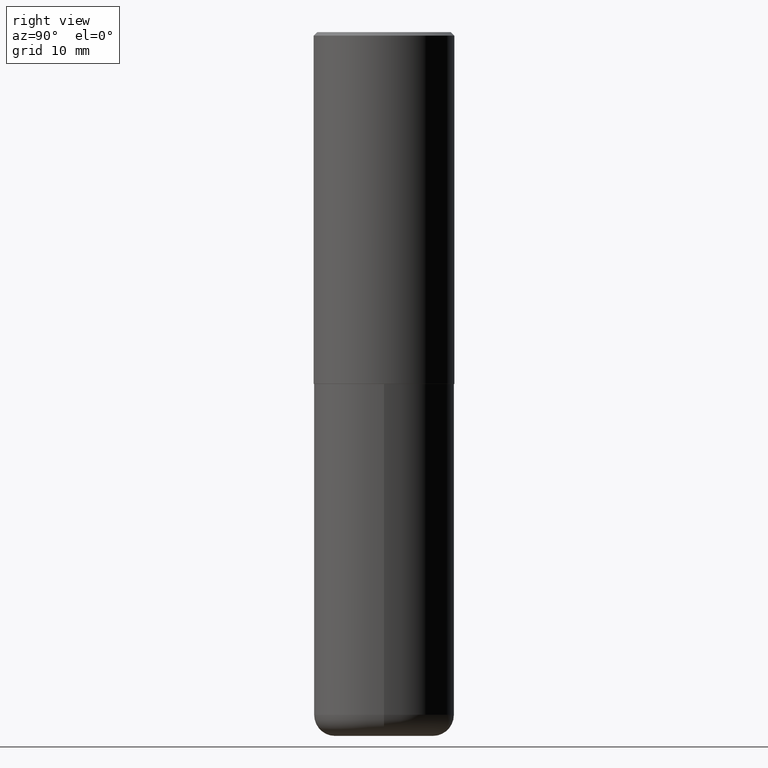
[diagram: clean part render]
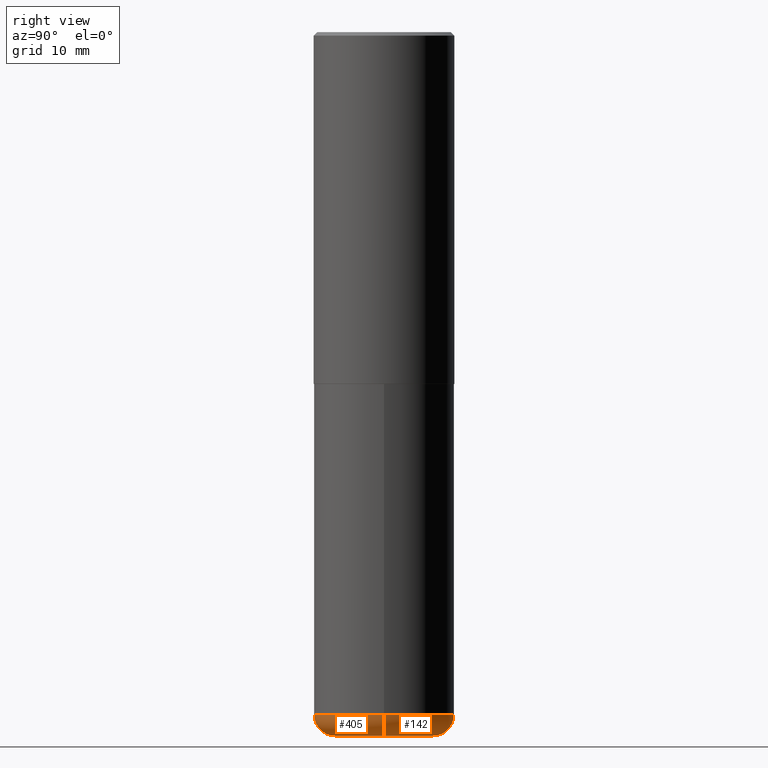
[diagram: same view with one multi-face feature highlighted, each face labeled with its STEP entity id]
A machine part, right view. The highlighted faces form ONE feature: a constant-radius fillet chain: 2 tangent blend faces with common blend radius 2.9997 mm. The faces share edges in the B-rep.
Their STEP definitions:
[1] entity #142 (Torus):
#6 = CARTESIAN_POINT ( 'NONE',  ( 0.2756000000000000116, -1.567046654499579837E-14, -3.937000000000000277 ) ) ;
#9 = ORIENTED_EDGE ( 'NONE', *, *, #338, .T. ) ;
#30 = CARTESIAN_POINT ( 'NONE',  ( 0.3937000000000000499, -1.608281049111317408E-14, -3.818900000000000183 ) ) ;
#40 = FACE_OUTER_BOUND ( 'NONE', #399, .T. ) ;
#41 = ORIENTED_EDGE ( 'NONE', *, *, #353, .T. ) ;
#45 = CIRCLE ( 'NONE', #272, 0.2756000000000000116 ) ;
#54 = AXIS2_PLACEMENT_3D ( 'NONE', #63, #133, #385 ) ;
#63 = CARTESIAN_POINT ( 'NONE',  ( 9.339000823940418668E-29, -1.333361808490808928E-14, -3.818900000000000183 ) ) ;
#78 = AXIS2_PLACEMENT_3D ( 'NONE', #146, #414, #255 ) ;
#89 = VERTEX_POINT ( 'NONE', #6 ) ;
#92 = CARTESIAN_POINT ( 'NONE',  ( -0.3937000000000000499, -1.053621133422057529E-14, -3.818900000000000183 ) ) ;
#99 = CARTESIAN_POINT ( 'NONE',  ( 0.2756000000000000116, -1.525812259887842581E-14, -3.818900000000000183 ) ) ;
#120 = DIRECTION ( 'NONE',  ( 1.000000000000000000, -6.982962677686265922E-15, 0.000000000000000000 ) ) ;
#124 = CARTESIAN_POINT ( 'NONE',  ( -0.2756000000000000116, -1.116195879274560421E-14, -3.937000000000000277 ) ) ;
#132 = DIRECTION ( 'NONE',  ( 1.000000000000000000, -6.982962677686273021E-15, 0.000000000000000000 ) ) ;
#133 = DIRECTION ( 'NONE',  ( -2.445468806185136597E-29, 3.491481338843145583E-15, 1.000000000000000000 ) ) ;
#139 = CIRCLE ( 'NONE', #78, 0.1180999999999999966 ) ;
#142 = ADVANCED_FACE ( 'NONE', ( #40 ), #222, .T. ) ;
#146 = CARTESIAN_POINT ( 'NONE',  ( -0.2756000000000000116, -1.137536230515325427E-14, -3.818900000000000183 ) ) ;
#151 = EDGE_CURVE ( 'NONE', #268, #323, #251, .T. ) ;
#168 = AXIS2_PLACEMENT_3D ( 'NONE', #220, #171, #322 ) ;
#171 = DIRECTION ( 'NONE',  ( -2.445468806185136597E-29, 3.491481338843145583E-15, 1.000000000000000000 ) ) ;
#220 = CARTESIAN_POINT ( 'NONE',  ( 9.339000823940418668E-29, -1.333361808490808928E-14, -3.818900000000000183 ) ) ;
#222 = TOROIDAL_SURFACE ( 'NONE', #54, 0.2756000000000000116, 0.1181000000000000105 ) ;
#246 = VERTEX_POINT ( 'NONE', #124 ) ;
#251 = CIRCLE ( 'NONE', #168, 0.3937000000000000499 ) ;
#255 = DIRECTION ( 'NONE',  ( -1.000000000000000000, 7.105427357601005014E-15, 0.000000000000000000 ) ) ;
#268 = VERTEX_POINT ( 'NONE', #30 ) ;
#271 = CIRCLE ( 'NONE', #369, 0.1180999999999999966 ) ;
#272 = AXIS2_PLACEMENT_3D ( 'NONE', #412, #278, #120 ) ;
#278 = DIRECTION ( 'NONE',  ( -2.445468806185136597E-29, 3.491481338843145583E-15, 1.000000000000000000 ) ) ;
#280 = ORIENTED_EDGE ( 'NONE', *, *, #401, .F. ) ;
#322 = DIRECTION ( 'NONE',  ( 1.000000000000000000, -6.982962677686267499E-15, 0.000000000000000000 ) ) ;
#323 = VERTEX_POINT ( 'NONE', #92 ) ;
#338 = EDGE_CURVE ( 'NONE', #89, #246, #45, .T. ) ;
#341 = ORIENTED_EDGE ( 'NONE', *, *, #151, .F. ) ;
#353 = EDGE_CURVE ( 'NONE', #246, #323, #139, .T. ) ;
#369 = AXIS2_PLACEMENT_3D ( 'NONE', #99, #383, #132 ) ;
#383 = DIRECTION ( 'NONE',  ( -6.982962677686266711E-15, -1.000000000000000000, 3.491481338843145583E-15 ) ) ;
#385 = DIRECTION ( 'NONE',  ( 1.000000000000000000, -6.982962677686268288E-15, 4.883557194083112901E-29 ) ) ;
#399 = EDGE_LOOP ( 'NONE', ( #9, #41, #341, #280 ) ) ;
#401 = EDGE_CURVE ( 'NONE', #89, #268, #271, .T. ) ;
#412 = CARTESIAN_POINT ( 'NONE',  ( 9.627810689950883669E-29, -1.374596203102546341E-14, -3.937000000000000277 ) ) ;
#414 = DIRECTION ( 'NONE',  ( 7.105427357601001859E-15, 1.000000000000000000, -3.491481338843145583E-15 ) ) ;
[2] entity #405 (Torus):
#3 = AXIS2_PLACEMENT_3D ( 'NONE', #91, #248, #215 ) ;
#6 = CARTESIAN_POINT ( 'NONE',  ( 0.2756000000000000116, -1.567046654499579837E-14, -3.937000000000000277 ) ) ;
#28 = AXIS2_PLACEMENT_3D ( 'NONE', #102, #138, #36 ) ;
#29 = EDGE_CURVE ( 'NONE', #246, #89, #95, .T. ) ;
#30 = CARTESIAN_POINT ( 'NONE',  ( 0.3937000000000000499, -1.608281049111317408E-14, -3.818900000000000183 ) ) ;
#36 = DIRECTION ( 'NONE',  ( 1.000000000000000000, -6.982962677686268288E-15, 4.883557194083112901E-29 ) ) ;
#58 = EDGE_CURVE ( 'NONE', #323, #268, #106, .T. ) ;
#78 = AXIS2_PLACEMENT_3D ( 'NONE', #146, #414, #255 ) ;
#89 = VERTEX_POINT ( 'NONE', #6 ) ;
#91 = CARTESIAN_POINT ( 'NONE',  ( 9.627810689950883669E-29, -1.374596203102546341E-14, -3.937000000000000277 ) ) ;
#92 = CARTESIAN_POINT ( 'NONE',  ( -0.3937000000000000499, -1.053621133422057529E-14, -3.818900000000000183 ) ) ;
#95 = CIRCLE ( 'NONE', #3, 0.2756000000000000116 ) ;
#99 = CARTESIAN_POINT ( 'NONE',  ( 0.2756000000000000116, -1.525812259887842581E-14, -3.818900000000000183 ) ) ;
#102 = CARTESIAN_POINT ( 'NONE',  ( 9.339000823940418668E-29, -1.333361808490808928E-14, -3.818900000000000183 ) ) ;
#106 = CIRCLE ( 'NONE', #129, 0.3937000000000000499 ) ;
#124 = CARTESIAN_POINT ( 'NONE',  ( -0.2756000000000000116, -1.116195879274560421E-14, -3.937000000000000277 ) ) ;
#129 = AXIS2_PLACEMENT_3D ( 'NONE', #310, #303, #262 ) ;
#132 = DIRECTION ( 'NONE',  ( 1.000000000000000000, -6.982962677686273021E-15, 0.000000000000000000 ) ) ;
#138 = DIRECTION ( 'NONE',  ( -2.445468806185136597E-29, 3.491481338843145583E-15, 1.000000000000000000 ) ) ;
#139 = CIRCLE ( 'NONE', #78, 0.1180999999999999966 ) ;
#146 = CARTESIAN_POINT ( 'NONE',  ( -0.2756000000000000116, -1.137536230515325427E-14, -3.818900000000000183 ) ) ;
#165 = ORIENTED_EDGE ( 'NONE', *, *, #353, .F. ) ;
#209 = TOROIDAL_SURFACE ( 'NONE', #28, 0.2756000000000000116, 0.1181000000000000105 ) ;
#215 = DIRECTION ( 'NONE',  ( 1.000000000000000000, -6.982962677686265922E-15, 0.000000000000000000 ) ) ;
#235 = EDGE_LOOP ( 'NONE', ( #165, #253, #357, #294 ) ) ;
#246 = VERTEX_POINT ( 'NONE', #124 ) ;
#248 = DIRECTION ( 'NONE',  ( -2.445468806185136597E-29, 3.491481338843145583E-15, 1.000000000000000000 ) ) ;
#253 = ORIENTED_EDGE ( 'NONE', *, *, #29, .T. ) ;
#255 = DIRECTION ( 'NONE',  ( -1.000000000000000000, 7.105427357601005014E-15, 0.000000000000000000 ) ) ;
#262 = DIRECTION ( 'NONE',  ( 1.000000000000000000, -6.982962677686267499E-15, 0.000000000000000000 ) ) ;
#265 = FACE_OUTER_BOUND ( 'NONE', #235, .T. ) ;
#268 = VERTEX_POINT ( 'NONE', #30 ) ;
#271 = CIRCLE ( 'NONE', #369, 0.1180999999999999966 ) ;
#294 = ORIENTED_EDGE ( 'NONE', *, *, #58, .F. ) ;
#303 = DIRECTION ( 'NONE',  ( -2.445468806185136597E-29, 3.491481338843145583E-15, 1.000000000000000000 ) ) ;
#310 = CARTESIAN_POINT ( 'NONE',  ( 9.339000823940418668E-29, -1.333361808490808928E-14, -3.818900000000000183 ) ) ;
#323 = VERTEX_POINT ( 'NONE', #92 ) ;
#353 = EDGE_CURVE ( 'NONE', #246, #323, #139, .T. ) ;
#357 = ORIENTED_EDGE ( 'NONE', *, *, #401, .T. ) ;
#369 = AXIS2_PLACEMENT_3D ( 'NONE', #99, #383, #132 ) ;
#383 = DIRECTION ( 'NONE',  ( -6.982962677686266711E-15, -1.000000000000000000, 3.491481338843145583E-15 ) ) ;
#401 = EDGE_CURVE ( 'NONE', #89, #268, #271, .T. ) ;
#405 = ADVANCED_FACE ( 'NONE', ( #265 ), #209, .T. ) ;
#414 = DIRECTION ( 'NONE',  ( 7.105427357601001859E-15, 1.000000000000000000, -3.491481338843145583E-15 ) ) ;